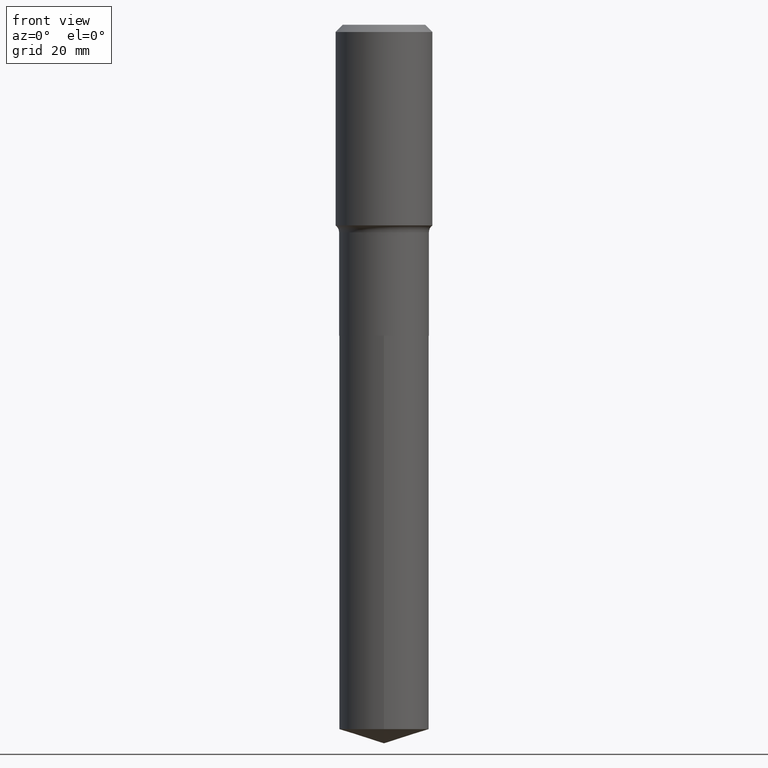
[diagram: clean part render]
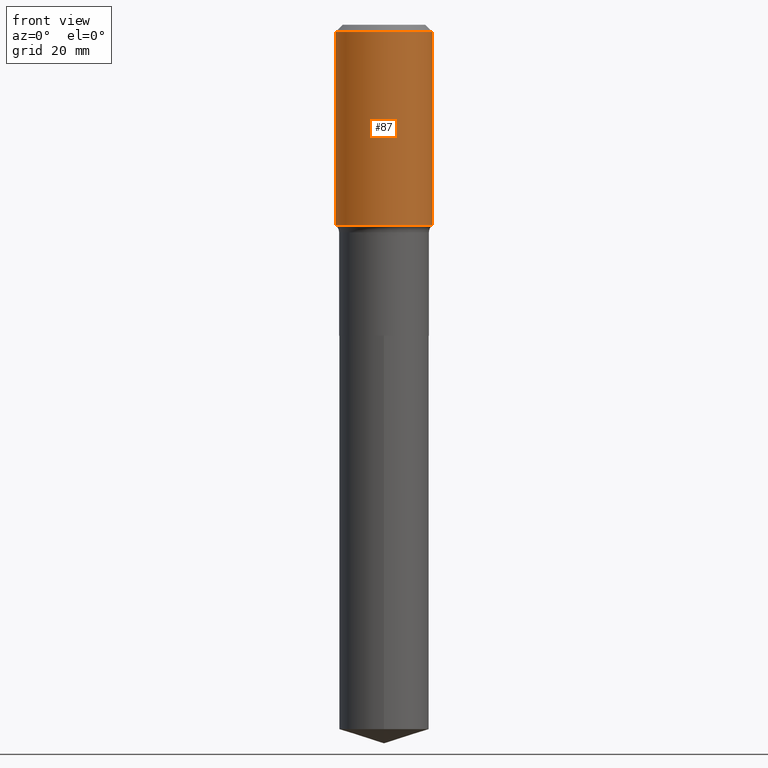
[diagram: same view with one face highlighted and labeled with its STEP entity id]
A machine part, front view. The second image highlights one B-rep face of the part: STEP entity #87.
In plain terms, the highlighted cylindrical surface (partial cylindrical patch) has radius 11.1125 mm, axis along (-0, 0, 1).
Its self-contained STEP definition (entity closure, byte-faithful):
#3 = EDGE_CURVE ( 'NONE', #190, #418, #337, .T. ) ;
#6 = CARTESIAN_POINT ( 'NONE',  ( 0.4375000000000001665, -9.394398017093069781E-15, -1.815662531281288850 ) ) ;
#52 = DIRECTION ( 'NONE',  ( 1.000000000000000000, -6.982962677686265133E-15, 0.000000000000000000 ) ) ;
#67 = CARTESIAN_POINT ( 'NONE',  ( 0.4375000000000000000, -3.284174634349324087E-15, -0.06562500000000040523 ) ) ;
#84 = EDGE_CURVE ( 'NONE', #317, #418, #113, .T. ) ;
#85 = FACE_OUTER_BOUND ( 'NONE', #265, .T. ) ;
#87 = ADVANCED_FACE ( 'NONE', ( #85 ), #391, .T. ) ;
#108 = CARTESIAN_POINT ( 'NONE',  ( -0.4375000000000000000, -1.756156852830166883E-16, -0.06562500000000040523 ) ) ;
#113 = CIRCLE ( 'NONE', #484, 0.4375000000000000000 ) ;
#118 = ORIENTED_EDGE ( 'NONE', *, *, #84, .F. ) ;
#131 = DIRECTION ( 'NONE',  ( -2.445468806185136877E-29, 3.491481338843145188E-15, 1.000000000000000000 ) ) ;
#137 = EDGE_CURVE ( 'NONE', #353, #317, #354, .T. ) ;
#139 = AXIS2_PLACEMENT_3D ( 'NONE', #312, #234, #203 ) ;
#163 = DIRECTION ( 'NONE',  ( -2.445468806185136597E-29, 3.491481338843145583E-15, 1.000000000000000000 ) ) ;
#187 = CARTESIAN_POINT ( 'NONE',  ( 0.4375000000000001110, -3.055046171487742475E-15, 2.133327339410722330E-29 ) ) ;
#190 = VERTEX_POINT ( 'NONE', #6 ) ;
#201 = DIRECTION ( 'NONE',  ( -2.445468806185136597E-29, 3.491481338843145583E-15, 1.000000000000000000 ) ) ;
#203 = DIRECTION ( 'NONE',  ( 1.000000000000000000, -6.982962677686266711E-15, 4.876176775795935793E-29 ) ) ;
#214 = EDGE_CURVE ( 'NONE', #353, #190, #260, .T. ) ;
#215 = VECTOR ( 'NONE', #131, 39.37007874015748143 ) ;
#229 = DIRECTION ( 'NONE',  ( -2.445468806185136877E-29, 3.491481338843145188E-15, 1.000000000000000000 ) ) ;
#234 = DIRECTION ( 'NONE',  ( -2.445468806185136597E-29, 3.491481338843145583E-15, 1.000000000000000000 ) ) ;
#235 = CARTESIAN_POINT ( 'NONE',  ( -0.4375000000000001110, 3.108624468950439102E-15, -2.152034101986521805E-29 ) ) ;
#253 = VECTOR ( 'NONE', #229, 39.37007874015748143 ) ;
#260 = CIRCLE ( 'NONE', #401, 0.4375000000000002776 ) ;
#265 = EDGE_LOOP ( 'NONE', ( #336, #480, #333, #118 ) ) ;
#271 = DIRECTION ( 'NONE',  ( 1.000000000000000000, -6.982962677686266711E-15, 0.000000000000000000 ) ) ;
#274 = CARTESIAN_POINT ( 'NONE',  ( 1.604838904059005561E-30, -2.291284628615828451E-16, -0.06562500000000040523 ) ) ;
#312 = CARTESIAN_POINT ( 'NONE',  ( 0.000000000000000000, 0.000000000000000000, 0.000000000000000000 ) ) ;
#317 = VERTEX_POINT ( 'NONE', #108 ) ;
#333 = ORIENTED_EDGE ( 'NONE', *, *, #3, .T. ) ;
#336 = ORIENTED_EDGE ( 'NONE', *, *, #137, .F. ) ;
#337 = LINE ( 'NONE', #187, #253 ) ;
#353 = VERTEX_POINT ( 'NONE', #365 ) ;
#354 = LINE ( 'NONE', #235, #215 ) ;
#365 = CARTESIAN_POINT ( 'NONE',  ( -0.4375000000000001665, -3.230727376654889387E-15, -1.815662531281288850 ) ) ;
#391 = CYLINDRICAL_SURFACE ( 'NONE', #139, 0.4375000000000001110 ) ;
#401 = AXIS2_PLACEMENT_3D ( 'NONE', #466, #201, #52 ) ;
#418 = VERTEX_POINT ( 'NONE', #67 ) ;
#466 = CARTESIAN_POINT ( 'NONE',  ( 4.440146082807536535E-29, -6.339351845605328884E-15, -1.815662531281288850 ) ) ;
#480 = ORIENTED_EDGE ( 'NONE', *, *, #214, .T. ) ;
#484 = AXIS2_PLACEMENT_3D ( 'NONE', #274, #163, #271 ) ;